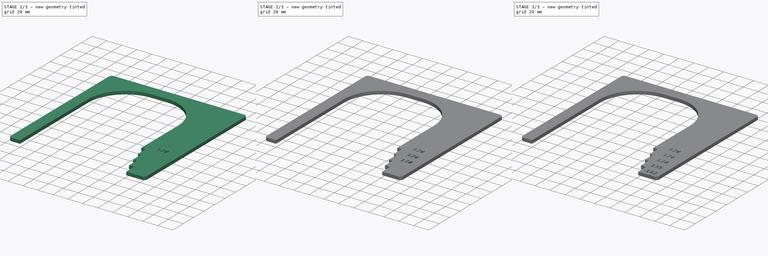
[diagram: build sequence overview — one tinted view per stage of 3, left to right]
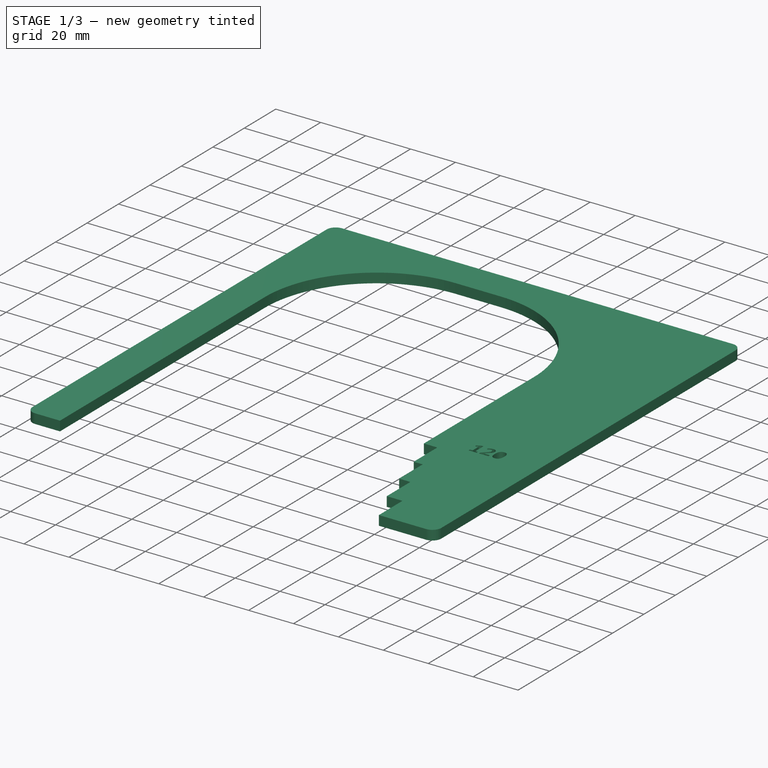
[diagram: stage 1 of 3 — iso view after this stage's code; geometry added in this stage tinted green]
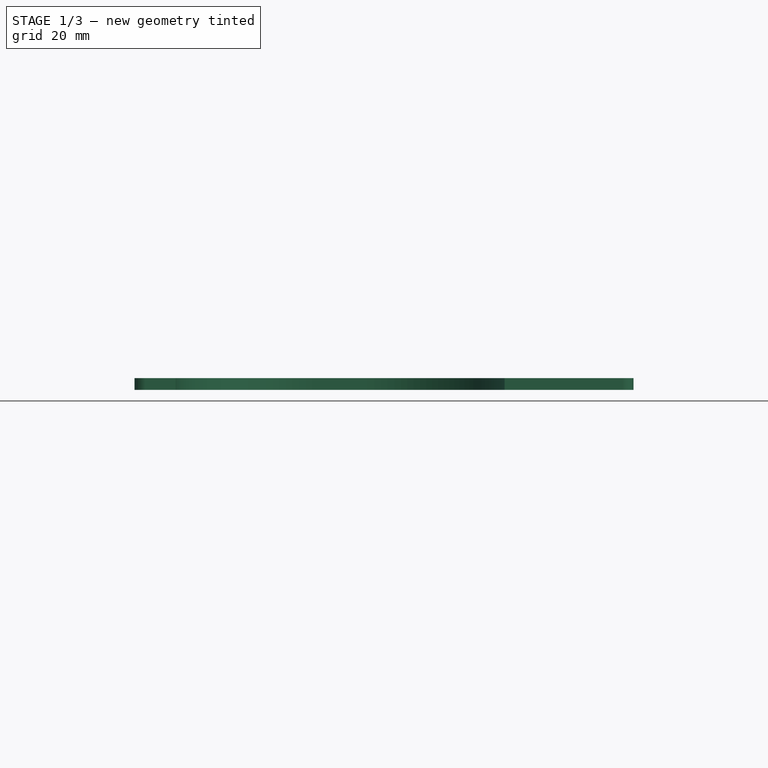
[diagram: stage 1 of 3 — front view after this stage's code; geometry added in this stage tinted green]
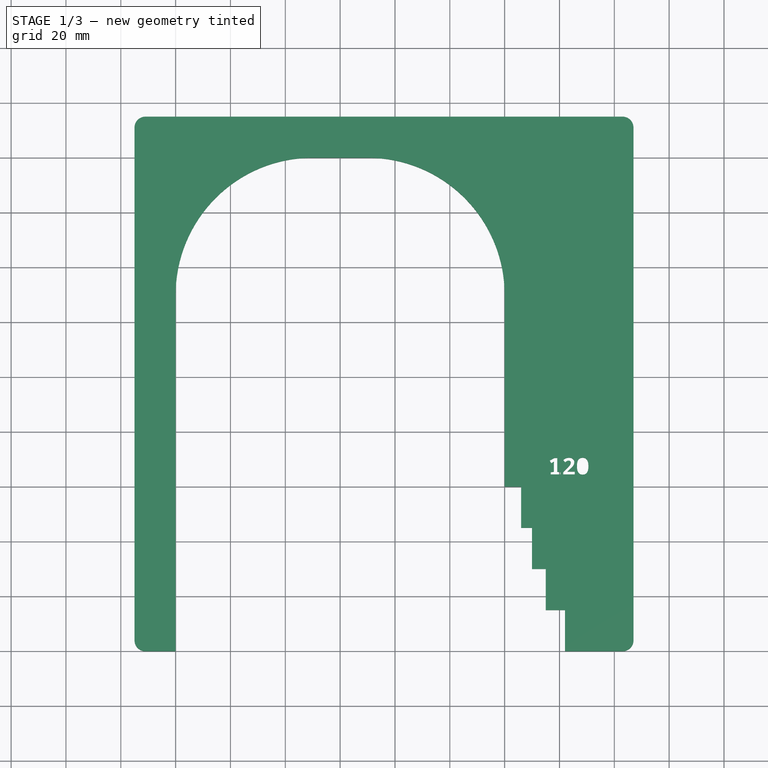
[diagram: stage 1 of 3 — top view after this stage's code; geometry added in this stage tinted green]
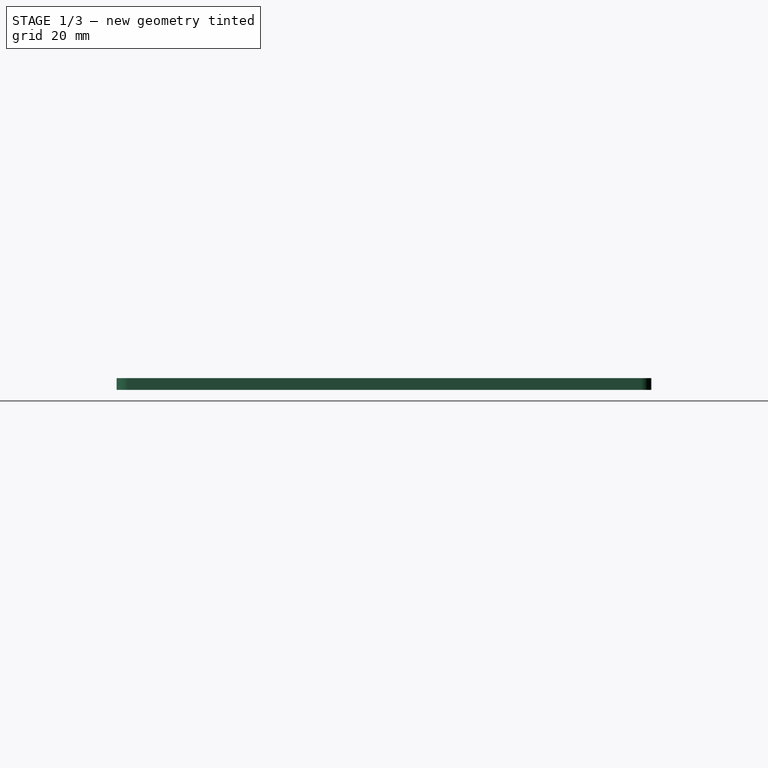
[diagram: stage 1 of 3 — right view after this stage's code; geometry added in this stage tinted green]
FCSTD DOCUMENT  (FreeCAD 1.0R)
Label: hub-measurement-steps
License: All rights reserved
LicenseURL: https://en.wikipedia.org/wiki/All_rights_reserved
objects: Part::Part2DObjectPython×6, PartDesign::Pocket×5, Sketcher::SketchObject×1, PartDesign::Pad×1, PartDesign::Body×1
note: 27 computed .brp shape members not serialized (recipe doc carries the construction recipe); baked Part::Feature solids carry a one-line shape summary decoded from their .brp

FEATURE [Sketcher::SketchObject] Sketch002  label="main shape"
  ArcFitTolerance = 1e-06
  AttachmentSupport = -> [XY_Plane001]
  FullyConstrained = true
  MakeInternals = false
  MapMode = 5
  expr: Constraints[13] = .Constraints.inner_fillet_radius
  expr: Constraints[25] = .Constraints.outer_fillet_radius
  expr: Constraints[26] = .Constraints.outer_fillet_radius
  expr: Constraints[27] = .Constraints.outer_fillet_radius
  expr: Constraints[30] = .Constraints.thickness
  expr: Constraints[80] = .Constraints.tooth_size / 2
  sketch-geometry (42):
    g0: LineSegment StartX=-15 StartY=4 StartZ=0 EndX=-15 EndY=191 EndZ=0
    g1: LineSegment StartX=-11 StartY=195 StartZ=0 EndX=163 EndY=195 EndZ=0
    g2: LineSegment StartX=167 StartY=191 StartZ=0 EndX=167 EndY=4 EndZ=0
    g3: LineSegment StartX=163 StartY=0 StartZ=0 EndX=142 EndY=0 EndZ=0
    g4: LineSegment StartX=70 StartY=180 StartZ=0 EndX=50 EndY=180 EndZ=0
    g5: LineSegment StartX=0 StartY=130 StartZ=0 EndX=0 EndY=0 EndZ=0
    g6: LineSegment StartX=0 StartY=0 StartZ=0 EndX=-11 EndY=0 EndZ=0
    g7: ArcOfCircle CenterX=50 CenterY=130 CenterZ=0 NormalX=0 NormalY=0 NormalZ=1 AngleXU=0 Radius=50 StartAngle=1.5708 EndAngle=3.14159
    g8: ArcOfCircle CenterX=70 CenterY=130 CenterZ=0 NormalX=0 NormalY=0 NormalZ=1 AngleXU=0 Radius=50 StartAngle=0 EndAngle=1.5708
    g9: LineSegment [constr] StartX=76 StartY=195 StartZ=0 EndX=60 EndY=180 EndZ=0
    g10: ArcOfCircle CenterX=163 CenterY=191 CenterZ=0 NormalX=0 NormalY=0 NormalZ=1 AngleXU=0 Radius=4 StartAngle=-2.7e-15 EndAngle=1.5708
    g11: ArcOfCircle CenterX=-11 CenterY=191 CenterZ=0 NormalX=0 NormalY=0 NormalZ=1 AngleXU=0 Radius=4 StartAngle=1.5708 EndAngle=3.14159
    g12: ArcOfCircle CenterX=-11 CenterY=4 CenterZ=0 NormalX=0 NormalY=0 NormalZ=1 AngleXU=0 Radius=4 StartAngle=3.14159 EndAngle=4.71239
    g13: ArcOfCircle CenterX=163 CenterY=4 CenterZ=0 NormalX=0 NormalY=0 NormalZ=1 AngleXU=0 Radius=4 StartAngle=4.71239 EndAngle=6.28319
    g14: LineSegment StartX=142 StartY=0 StartZ=0 EndX=142 EndY=15 EndZ=0
    g15: LineSegment StartX=142 StartY=15 StartZ=0 EndX=135 EndY=15 EndZ=0
    g16: LineSegment StartX=135 StartY=15 StartZ=0 EndX=135 EndY=30 EndZ=0
    g17: LineSegment StartX=135 StartY=30 StartZ=0 EndX=130 EndY=30 EndZ=0
    g18: LineSegment StartX=130 StartY=30 StartZ=0 EndX=130 EndY=45 EndZ=0
    g19: LineSegment StartX=130 StartY=45 StartZ=0 EndX=126 EndY=45 EndZ=0
    g20: LineSegment StartX=126 StartY=45 StartZ=0 EndX=126 EndY=60 EndZ=0
    g21: LineSegment StartX=126 StartY=60 StartZ=0 EndX=120 EndY=60 EndZ=0
    g22: LineSegment StartX=120 StartY=60 StartZ=0 EndX=120 EndY=130 EndZ=0
    g23: GeomPoint X=142 Y=7.5 Z=0
    g24: GeomPoint X=135 Y=22.5 Z=0
    g25: GeomPoint X=130 Y=37.5 Z=0
    g26: GeomPoint X=126 Y=52.5 Z=0
    g27: GeomPoint X=0 Y=52.5 Z=0
    g28: GeomPoint X=0 Y=37.5 Z=0
    g29: GeomPoint X=0 Y=22.5 Z=0
    g30: GeomPoint X=0 Y=7.5 Z=0
    g31: GeomPoint X=154.5 Y=7.5 Z=0
    g32: GeomPoint X=151 Y=22.5 Z=0
    g33: GeomPoint X=148.5 Y=37.5 Z=0
    g34: GeomPoint X=146.5 Y=52.5 Z=0
    g35: GeomPoint X=143.5 Y=67.5 Z=0
    g36: GeomPoint X=120 Y=67.5 Z=0
    g37: GeomPoint X=167 Y=67.5 Z=0
    g38: GeomPoint X=167 Y=52.5 Z=0
    g39: GeomPoint X=167 Y=37.5 Z=0
    g40: GeomPoint X=167 Y=22.5 Z=0
    g41: GeomPoint X=167 Y=7.5 Z=0
  constraints (93):
    c: Vertical(g0)
    c: Horizontal(g1)
    c: Horizontal(g4)
    c: Vertical(g5)
    c: Coincident(g5,g6)
    c: Horizontal(g6)
    c: Vertical(g2)
    c: Horizontal(g3)
    c: Coincident(g5,g-1)
    c: Tangent(g4,g7) = -1.5708
    c: Tangent(g5,g7) = -1.5708
    c: Tangent(g4,g8) = -1.5708
    c: Radius(g8) = 50  'inner_fillet_radius'
    c: Radius(g7) = 50
    c: Symmetric(g4,g4,g9)
    c: Tangent(g1,g10) = 1.5708
    c: Tangent(g2,g10) = 1.5708
    c: Tangent(g0,g11) = 1.5708
    c: Tangent(g1,g11) = 1.5708
    c: Tangent(g0,g12) = 1.5708
    c: Tangent(g6,g12) = 1.5708
    c: Tangent(g2,g13) = 1.5708
    c: Tangent(g3,g13) = 1.5708
    c: Distance(g5,g0) = 15  'thickness'
    c: Radius(g13) = 4  'outer_fillet_radius'
    c: Radius(g12) = 4
    c: Radius(g11) = 4
    c: Radius(g10) = 4
    c: PointOnObject(g3,g-1)
    c: Symmetric(g1,g1,g9)
    c: DistanceY(g9,g9) = 15
    c: Coincident(g3,g14)
    c: Vertical(g14)
    c: Coincident(g14,g15)
    c: Horizontal(g15)
    c: Coincident(g15,g16)
    c: Vertical(g16)
    c: Coincident(g16,g17)
    c: Coincident(g17,g18)
    c: Vertical(g18)
    c: Coincident(g18,g19)
    c: Coincident(g19,g20)
    c: Vertical(g20)
    c: Coincident(g20,g21)
    c: Horizontal(g21)
    c: Coincident(g21,g22)
    c: Coincident(g22,g8)
    c: Vertical(g22)
    c: Horizontal(g19)
    c: Horizontal(g17)
    c: PointOnObject(g5,g-2)
    c: PointOnObject(g5,g-1)
    c: Equal(g20,g18)
    c: Equal(g18,g16)
    c: Equal(g16,g14)
    c: DistanceX(g5,g8) = 120
    c: Symmetric(g14,g14,g23)
    c: Symmetric(g16,g16,g24)
    c: Symmetric(g18,g18,g25)
    c: Symmetric(g20,g20,g26)
    c: PointOnObject(g28,g5)
    c: PointOnObject(g29,g5)
    c: PointOnObject(g30,g5)
    c: DistanceX(g30,g23) = 142
    c: DistanceX(g29,g24) = 135
    c: DistanceX(g28,g25) = 130
    c: DistanceX(g27,g26) = 126
    c: PointOnObject(g27,g5)
    c: DistanceX(g23,g2) = 25
    c: DistanceY(g20,g20) = 15  'tooth_size'
    c: Horizontal(g30,g23)
    c: Horizontal(g24,g29)
    c: Horizontal(g28,g25)
    c: Horizontal(g26,g27)
    c: Horizontal(g8,g5)
    c: DistanceY(g21,g9) = 120  'depth'
    c: Horizontal(g31,g23)
    c: Horizontal(g33,g25)
    c: Horizontal(g32,g24)
    c: Horizontal(g26,g34)
    c: DistanceY(g20,g35) = 7.5
    c: PointOnObject(g36,g22)
    c: PointOnObject(g37,g2)
    c: PointOnObject(g38,g2)
    c: PointOnObject(g39,g2)
    c: PointOnObject(g40,g2)
    c: Horizontal(g37,g35)
    c: PointOnObject(g41,g2)
    c: Symmetric(g37,g36,g35)
    c: Symmetric(g38,g26,g34)
    c: Symmetric(g39,g25,g33)
    c: Symmetric(g40,g24,g32)
    c: Symmetric(g41,g23,g31)
FEATURE [PartDesign::Pad] Pad002  label="main extrusion"
  Direction = (0,0,1)
  Length = 4.3
  Length2 = 10
  Profile = -> Sketch002
  ReferenceAxis = -> Sketch002 [N_Axis]
  Refine = true
  Suppressed = false
  Type = 0
FEATURE [Part::Part2DObjectPython] ShapeString  # Draft 2D object (typed FeaturePython)
  AttacherType = Attacher::AttachEnginePoint
  AttachmentSupport = -> [Sketch002]
  FontFile = <path>
  Fuse = false
  Justification = 4
  JustificationReference = 0
  KeepLeftMargin = false
  MakeFace = true
  MapMode = 39
  ObliqueAngle = 0
  Placement = pos=(143.5,67.5,0) rot=(0,0,1;0rad)
  ScaleToSize = true
  Size = 6
  String = 120
  Tracking = 0
FEATURE [PartDesign::Pocket] Pocket
  BaseFeature = -> Pad002
  Direction = (0,0,-1)
  Length = 5
  Length2 = 5
  Profile = -> ShapeString
  ReferenceAxis = -> ShapeString [N_Axis]
  Refine = true
  Reversed = true
  Suppressed = false
  Type = 1
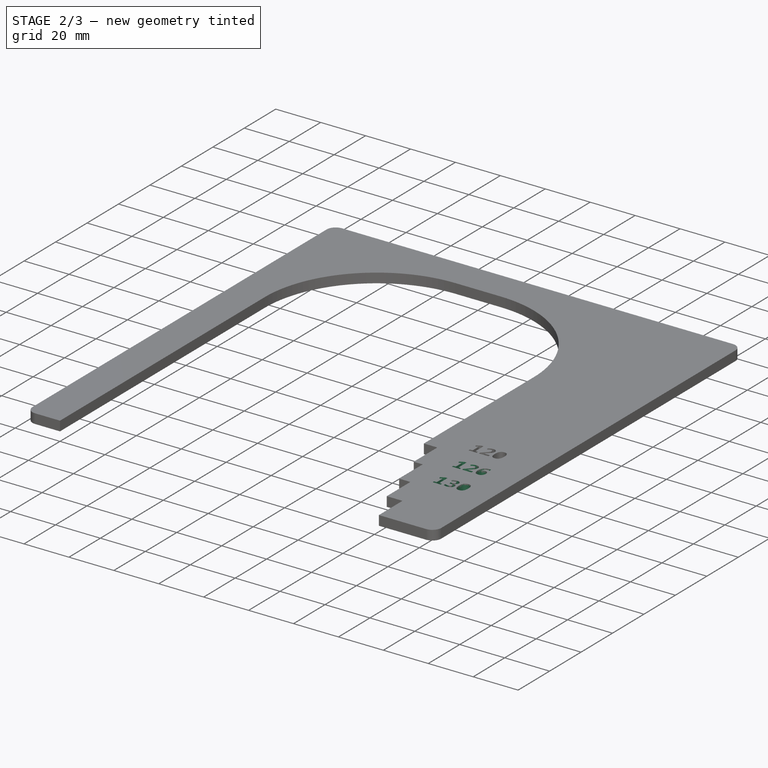
[diagram: stage 2 of 3 — iso view after this stage's code; geometry added in this stage tinted green]
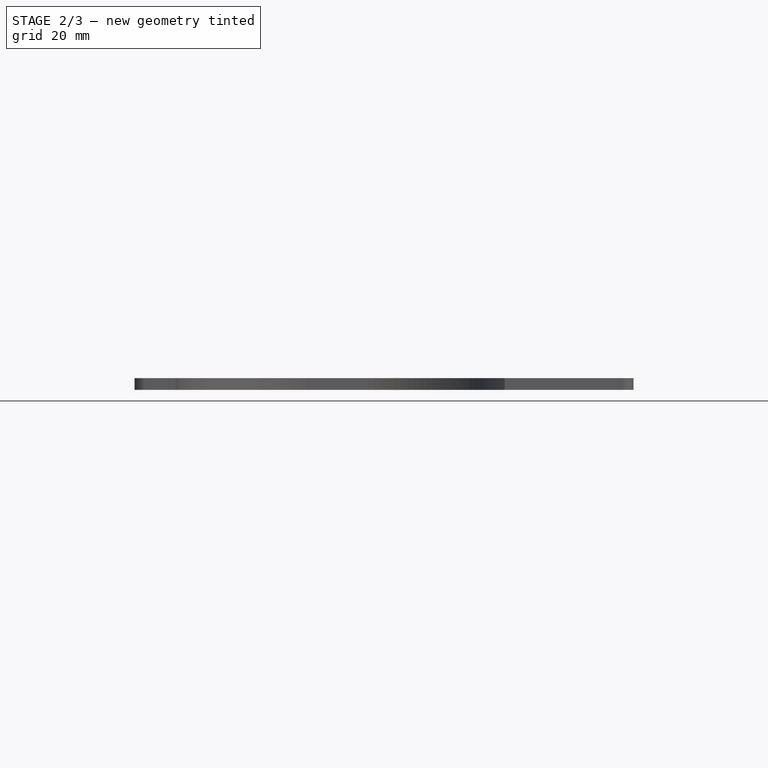
[diagram: stage 2 of 3 — front view after this stage's code; geometry added in this stage tinted green]
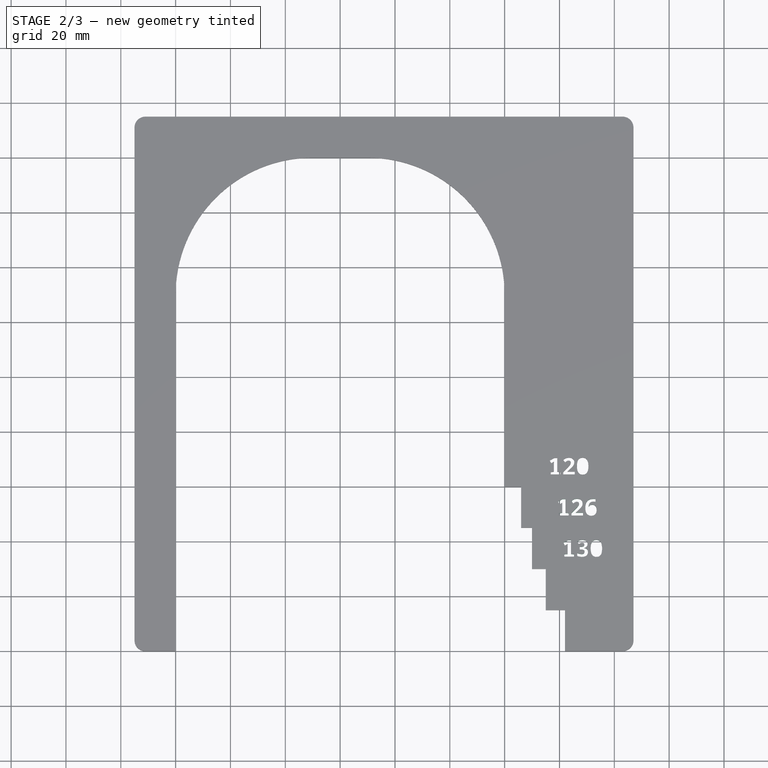
[diagram: stage 2 of 3 — top view after this stage's code; geometry added in this stage tinted green]
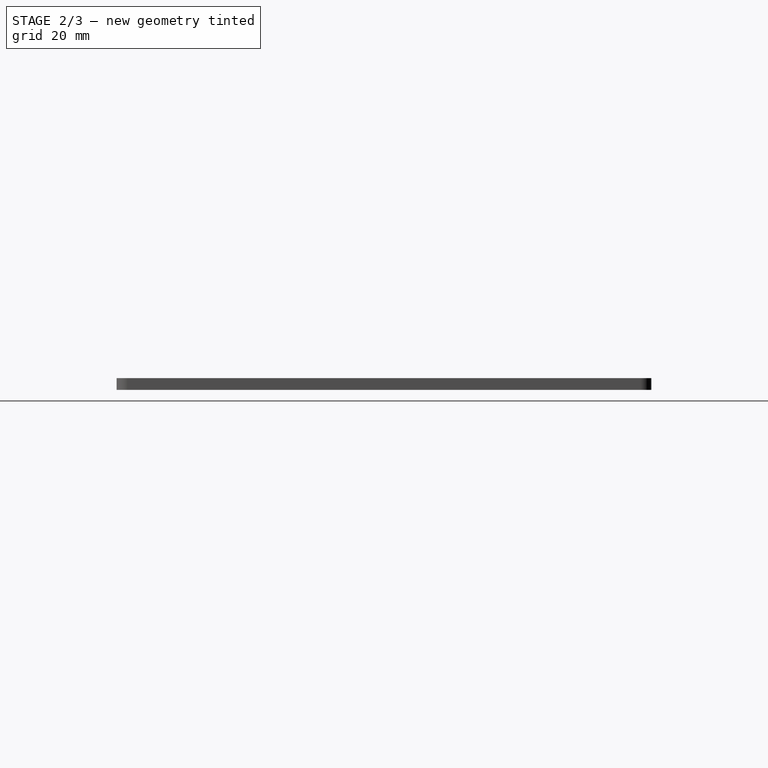
[diagram: stage 2 of 3 — right view after this stage's code; geometry added in this stage tinted green]
FEATURE [Part::Part2DObjectPython] ShapeString001  # Draft 2D object (typed FeaturePython)
  AttacherType = Attacher::AttachEnginePoint
  AttachmentSupport = -> [Sketch002]
  FontFile = <path>
  Fuse = false
  Justification = 4
  JustificationReference = 0
  KeepLeftMargin = false
  MakeFace = true
  MapMode = 39
  ObliqueAngle = 0
  Placement = pos=(146.5,52.5,0) rot=(0,0,1;0rad)
  ScaleToSize = true
  Size = 6
  String = 126
  Tracking = 0
FEATURE [PartDesign::Pocket] Pocket001
  BaseFeature = -> Pocket
  Direction = (0,0,-1)
  Length = 5
  Length2 = 5
  Profile = -> ShapeString001
  ReferenceAxis = -> ShapeString001 [N_Axis]
  Refine = true
  Reversed = true
  Suppressed = false
  Type = 1
FEATURE [Part::Part2DObjectPython] ShapeString002  # Draft 2D object (typed FeaturePython)
  AttacherType = Attacher::AttachEnginePoint
  AttachmentSupport = -> [Sketch002]
  FontFile = <path>
  Fuse = false
  Justification = 4
  JustificationReference = 0
  KeepLeftMargin = false
  MakeFace = true
  MapMode = 39
  ObliqueAngle = 0
  Placement = pos=(148.5,37.5,0) rot=(0,0,1;0rad)
  ScaleToSize = true
  Size = 6
  String = 130
  Tracking = 0
FEATURE [PartDesign::Pocket] Pocket002
  BaseFeature = -> Pocket001
  Direction = (0,0,-1)
  Length = 5
  Length2 = 5
  Profile = -> ShapeString002
  ReferenceAxis = -> ShapeString002 [N_Axis]
  Refine = true
  Reversed = true
  Suppressed = false
  Type = 1
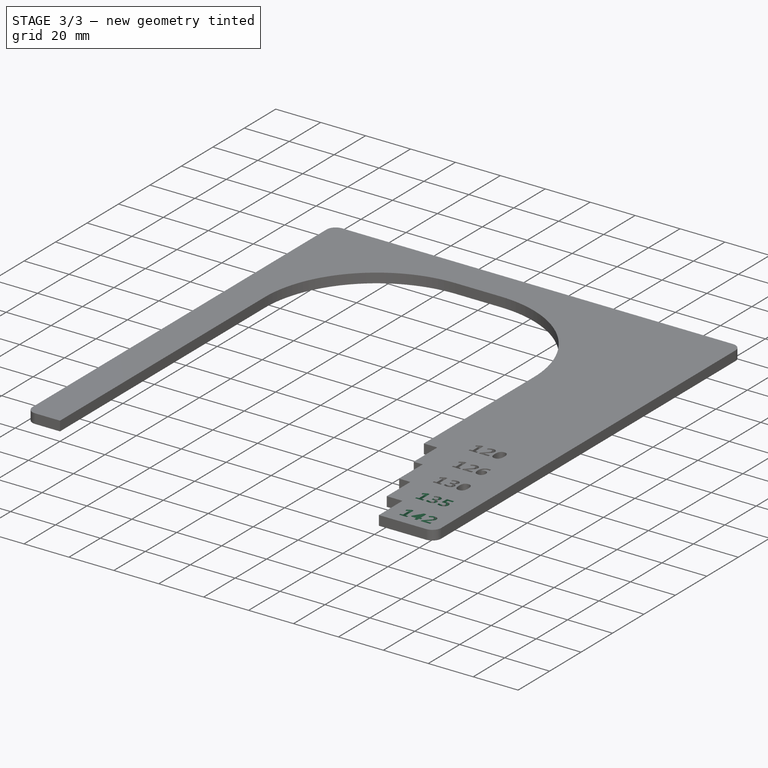
[diagram: stage 3 of 3 — iso view after this stage's code; geometry added in this stage tinted green]
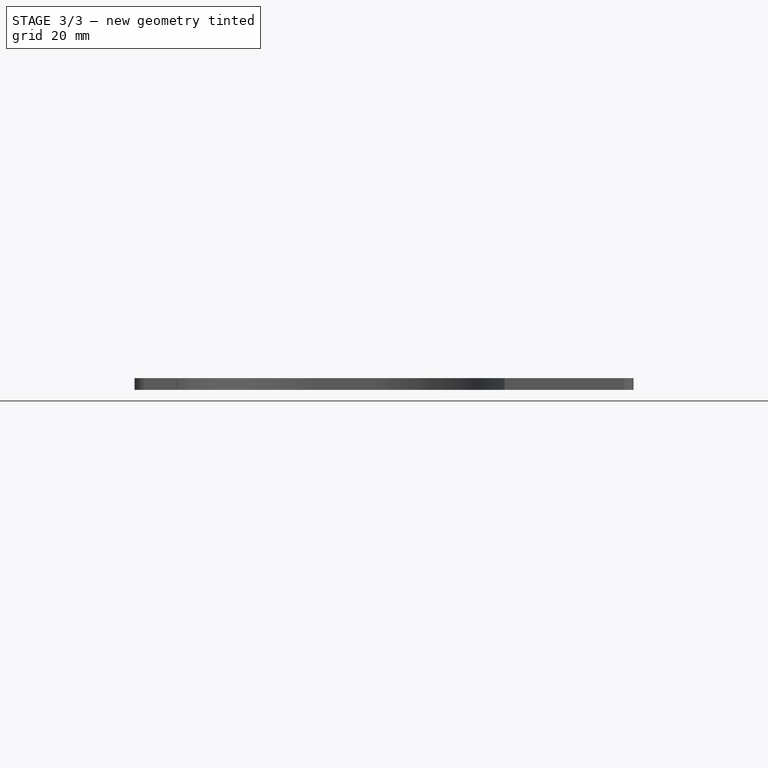
[diagram: stage 3 of 3 — front view after this stage's code; geometry added in this stage tinted green]
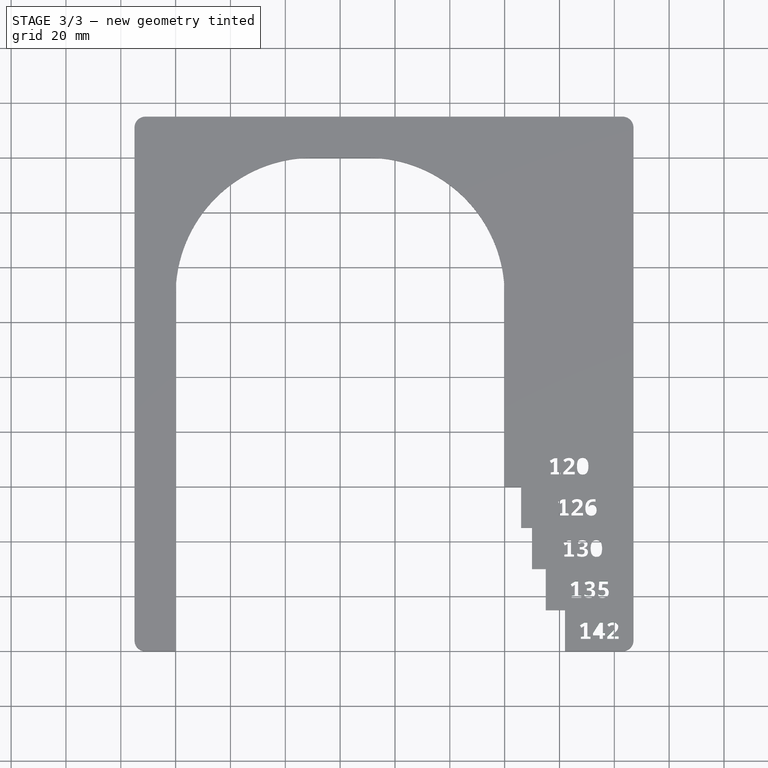
[diagram: stage 3 of 3 — top view after this stage's code; geometry added in this stage tinted green]
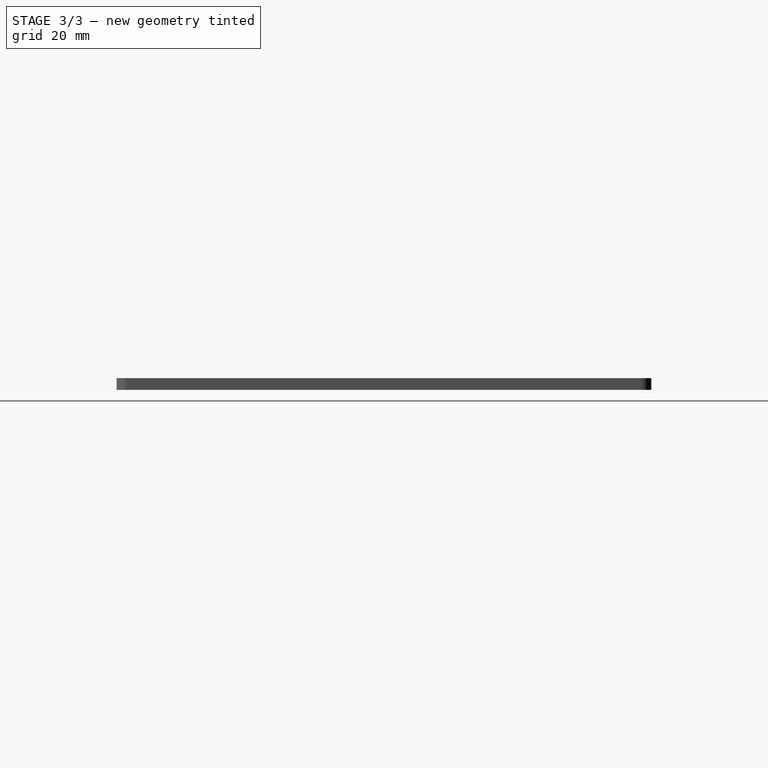
[diagram: stage 3 of 3 — right view after this stage's code; geometry added in this stage tinted green]
FEATURE [Part::Part2DObjectPython] ShapeString003  # Draft 2D object (typed FeaturePython)
  AttacherType = Attacher::AttachEnginePoint
  AttachmentSupport = -> [Sketch002]
  FontFile = <path>
  Fuse = false
  Justification = 4
  JustificationReference = 0
  KeepLeftMargin = false
  MakeFace = true
  MapMode = 39
  ObliqueAngle = 0
  Placement = pos=(151,22.5,0) rot=(0,0,1;0rad)
  ScaleToSize = true
  Size = 6
  String = 135
  Tracking = 0
FEATURE [PartDesign::Pocket] Pocket003
  BaseFeature = -> Pocket002
  Direction = (0,0,-1)
  Length = 5
  Length2 = 5
  Profile = -> ShapeString003
  ReferenceAxis = -> ShapeString003 [N_Axis]
  Refine = true
  Reversed = true
  Suppressed = false
  Type = 1
FEATURE [Part::Part2DObjectPython] ShapeString004  # Draft 2D object (typed FeaturePython)
  AttacherType = Attacher::AttachEnginePoint
  AttachmentSupport = -> [Sketch002]
  FontFile = <path>
  Fuse = false
  Justification = 4
  JustificationReference = 0
  KeepLeftMargin = false
  MakeFace = true
  MapMode = 39
  ObliqueAngle = 0
  Placement = pos=(154.5,7.5,0) rot=(0,0,1;0rad)
  ScaleToSize = true
  Size = 6
  String = 142
  Tracking = 0
FEATURE [PartDesign::Pocket] Pocket004
  BaseFeature = -> Pocket003
  Direction = (0,0,-1)
  Length = 5
  Length2 = 5
  Profile = -> ShapeString004
  ReferenceAxis = -> ShapeString004 [N_Axis]
  Refine = true
  Reversed = true
  Suppressed = false
  Type = 1
FEATURE [PartDesign::Body] Body001
  AllowCompound = false
  Group = -> [Sketch002,Pad002,ShapeString,Pocket,ShapeString001,Pocket001,ShapeString002,Pocket002,ShapeString003,Pocket003,ShapeString004,Pocket004]
  Origin = -> Origin001
  Tip = -> Pocket004
FEATURE [Part::Part2DObjectPython] Shape2DView  # Draft 2D object (typed FeaturePython)
  AutoUpdate = true
  Base = -> Pocket004
  Clip = false
  FuseArch = false
  HiddenLines = false
  InPlace = true
  OnlySolids = false
  Projection = (0,0,1)
  ProjectionMode = 0
  SegmentLength = 0.05
  Tessellation = false
  VisibleOnly = false
note: 5 file-system paths scrubbed to <path> (originals preserved in the JSON sidecar)
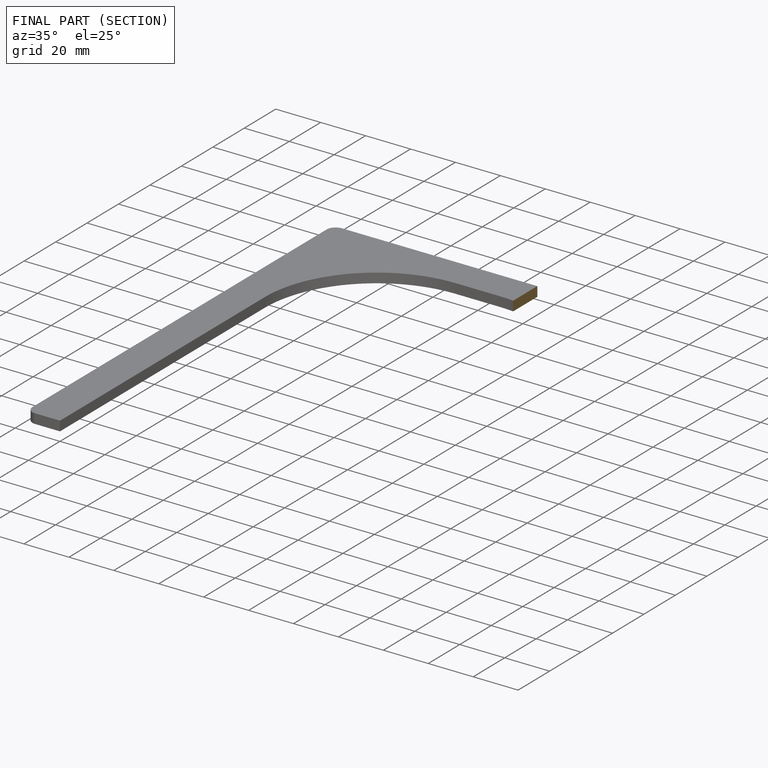
[diagram: finished part — half-section view (interior)]
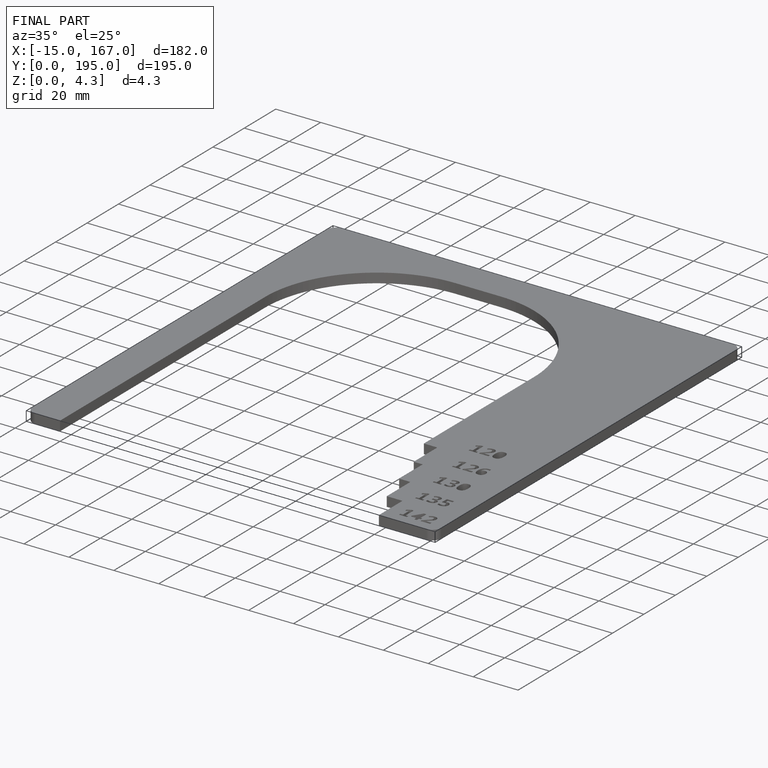
[diagram: finished part — iso view with bounding-box wireframe]
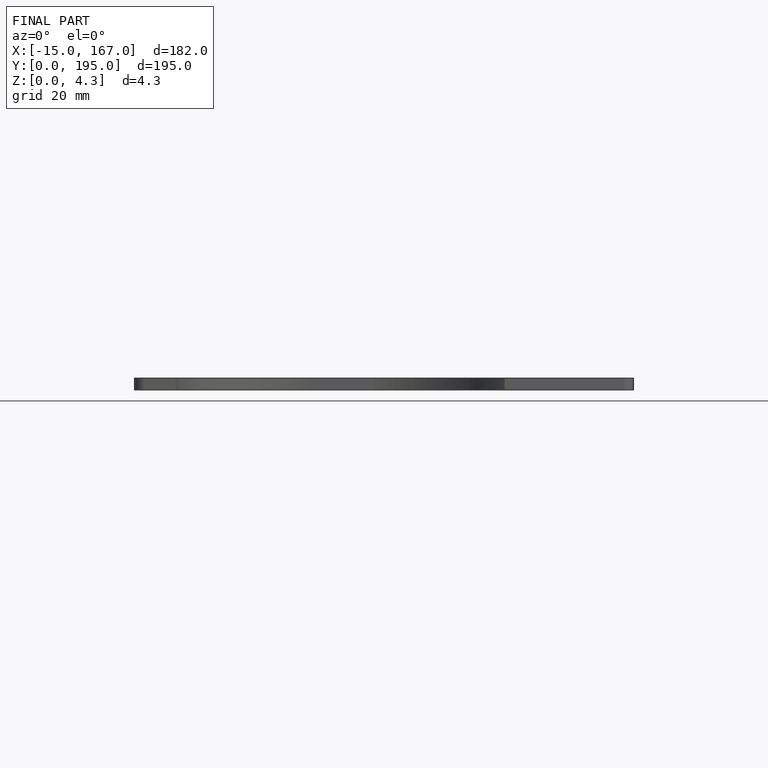
[diagram: finished part — front view with bounding-box wireframe]
